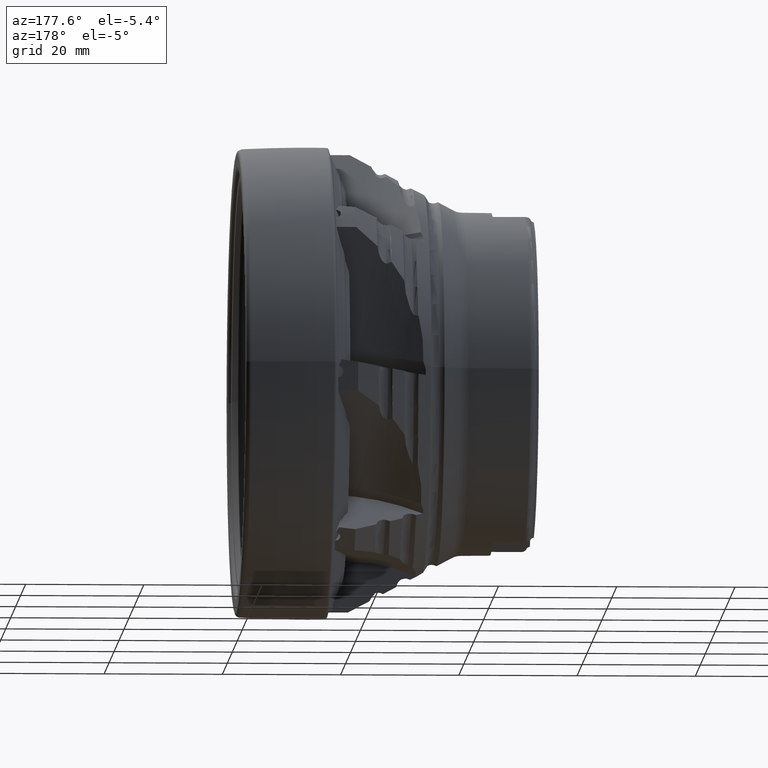
[diagram: clean part render]
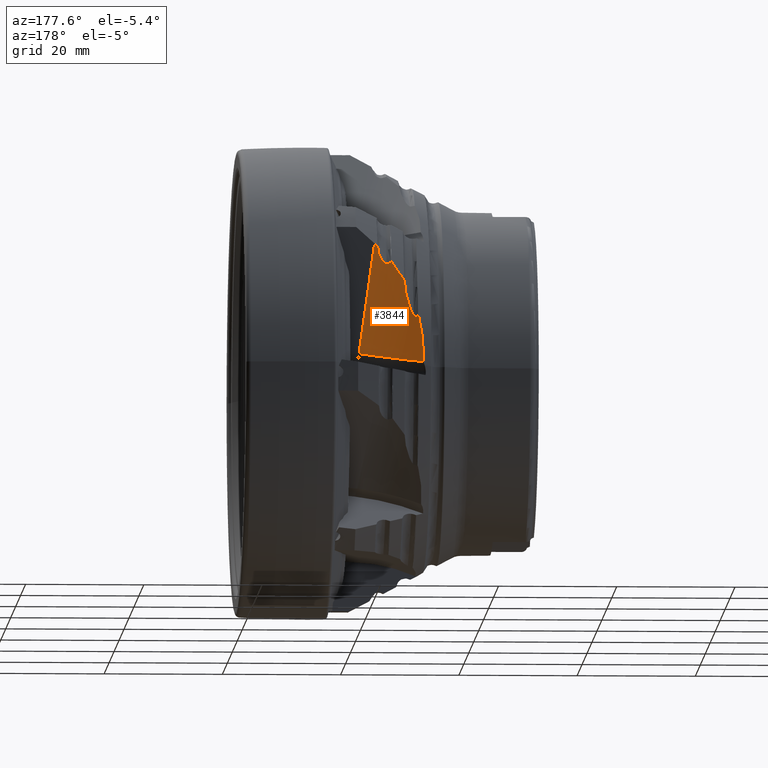
[diagram: same view with one face highlighted and labeled with its STEP entity id]
A machine part, auxiliary view. The second image highlights one B-rep face of the part: STEP entity #3844.
In plain terms, the highlighted cylindrical surface (partial cylindrical patch) has radius 28 mm, axis along (0.1392, -0, -0.9903).
Its self-contained STEP definition (entity closure, byte-faithful):
#272 = CARTESIAN_POINT ( 'NONE',  ( -28.54999999999719051, 32.02380545925430511, 8.342915129850325684 ) ) ;
#298 = CARTESIAN_POINT ( 'NONE',  ( -28.25059067918947520, 31.91470644618340913, 8.534568651594154787 ) ) ;
#367 = CARTESIAN_POINT ( 'NONE',  ( -26.09401459730156603, 31.10721405778480886, 14.66001357893649271 ) ) ;
#369 = CARTESIAN_POINT ( 'NONE',  ( -26.05623755796752050, 31.09739366526137871, 14.72731713612908422 ) ) ;
#404 = EDGE_CURVE ( 'NONE', #463, #1331, #7743, .T. ) ;
#453 = CARTESIAN_POINT ( 'NONE',  ( -24.04999999999976978, 30.70044355384183277, 17.75917441920303119 ) ) ;
#463 = VERTEX_POINT ( 'NONE', #8515 ) ;
#473 = B_SPLINE_CURVE_WITH_KNOTS ( 'NONE', 3,
 ( #11228, #16771, #16952, #9964, #4296, #1397, #1585, #298, #12685, #14053 ),
 .UNSPECIFIED., .F., .F.,
 ( 4, 2, 2, 2, 4 ),
 ( 0.005757929590043406667, 0.005978103728821175522, 0.006198277867598943509, 0.006418452006376711497, 0.006638626145154480351 ),
 .UNSPECIFIED. ) ;
#488 = VERTEX_POINT ( 'NONE', #9047 ) ;
#586 = CARTESIAN_POINT ( 'NONE',  ( -24.04999999999976978, 30.70044355384183277, 17.75917441920303119 ) ) ;
#625 = CARTESIAN_POINT ( 'NONE',  ( -27.10094642001381970, 31.51358236391267553, 9.849628833809386919 ) ) ;
#715 = CARTESIAN_POINT ( 'NONE',  ( -26.18160270408412060, 31.15158933761906468, 13.80139049490509073 ) ) ;
#793 = VERTEX_POINT ( 'NONE', #15702 ) ;
#1118 = LINE ( 'NONE', #10595, #13188 ) ;
#1173 = VERTEX_POINT ( 'NONE', #1516 ) ;
#1331 = VERTEX_POINT ( 'NONE', #3922 ) ;
#1397 = CARTESIAN_POINT ( 'NONE',  ( -28.04029982979329816, 31.84828060497942559, 8.500696362892220748 ) ) ;
#1400 = VERTEX_POINT ( 'NONE', #10681 ) ;
#1446 = CARTESIAN_POINT ( 'NONE',  ( -29.29088833288376037, 32.56091778339649778, 3.288621524088843895 ) ) ;
#1488 = CARTESIAN_POINT ( 'NONE',  ( -21.55623755796532848, 30.50421663162748587, 20.55381755742710581 ) ) ;
#1516 = CARTESIAN_POINT ( 'NONE',  ( -27.65310013455658122, 31.71508596336956032, 8.802256102059438092 ) ) ;
#1585 = CARTESIAN_POINT ( 'NONE',  ( -28.11490365212778642, 31.87249608808506096, 8.494141626032918779 ) ) ;
#1818 = CARTESIAN_POINT ( 'NONE',  ( -24.79365820758102146, 30.80518772417406126, 16.79451610091992464 ) ) ;
#1890 = CARTESIAN_POINT ( 'NONE',  ( -28.36213381450417970, 31.94714175012272506, 8.629362536280213547 ) ) ;
#1910 = EDGE_CURVE ( 'NONE', #3236, #10356, #15117, .T. ) ;
#2066 = VERTEX_POINT ( 'NONE', #8586 ) ;
#2347 = CARTESIAN_POINT ( 'NONE',  ( -22.08995577937714927, 30.52974839597614221, 18.55638395515981287 ) ) ;
#2401 = B_SPLINE_CURVE_WITH_KNOTS ( 'NONE', 3,
 ( #14879, #14793, #5224, #10881 ),
 .UNSPECIFIED., .F., .F.,
 ( 4, 4 ),
 ( 0.003409954374900377432, 0.004005814591837761861 ),
 .UNSPECIFIED. ) ;
#2409 = EDGE_CURVE ( 'NONE', #793, #1400, #1118, .T. ) ;
#2622 = VERTEX_POINT ( 'NONE', #9345 ) ;
#2657 = CARTESIAN_POINT ( 'NONE',  ( -23.88970935413226826, 30.68080866256903505, 17.82127014401150333 ) ) ;
#3236 = VERTEX_POINT ( 'NONE', #13403 ) ;
#3242 = CARTESIAN_POINT ( 'NONE',  ( -28.51697997293542386, 32.00647995554353997, 8.470346181860353596 ) ) ;
#3267 = CYLINDRICAL_SURFACE ( 'NONE', #13908, 27.99999999999991829 ) ;
#3470 = DIRECTION ( 'NONE',  ( 0.1391731009600656876, -1.035546365812845016E-14, -0.9902680687415703620 ) ) ;
#3557 = CARTESIAN_POINT ( 'NONE',  ( -18.49250115703378228, 58.50000000000001421, 2.245645206013481943 ) ) ;
#3673 = CARTESIAN_POINT ( 'NONE',  ( -23.15310013455561489, 30.61042586495209150, 17.55723081468747537 ) ) ;
#3700 = CARTESIAN_POINT ( 'NONE',  ( -26.71360237392335080, 31.36929571353183022, 10.98145226772411043 ) ) ;
#3791 = EDGE_CURVE ( 'NONE', #1173, #2066, #473, .T. ) ;
#3797 = CARTESIAN_POINT ( 'NONE',  ( -21.92164612986321615, 30.52019603093055622, 18.93336669877165690 ) ) ;
#3844 = ADVANCED_FACE ( 'NONE', ( #17400 ), #3267, .F. ) ;
#3887 = CARTESIAN_POINT ( 'NONE',  ( -23.15310013455561489, 30.61042586495209150, 17.55723081468747537 ) ) ;
#3922 = CARTESIAN_POINT ( 'NONE',  ( -29.27311110032949060, 32.70304527663430605, 0.7305292859820695650 ) ) ;
#4296 = CARTESIAN_POINT ( 'NONE',  ( -27.90976683512982603, 31.80470918555885262, 8.552490839220924457 ) ) ;
#4336 = CARTESIAN_POINT ( 'NONE',  ( -29.32246990230704853, 32.64834757631168571, 2.013039795174663471 ) ) ;
#4356 = EDGE_CURVE ( 'NONE', #2622, #3236, #9351, .T. ) ;
#4708 = CARTESIAN_POINT ( 'NONE',  ( -28.53461363328776201, 32.01549169064553269, 8.407027578726580685 ) ) ;
#4737 = DIRECTION ( 'NONE',  ( -0.9902680687415702510, 0.0000000000000000000, -0.1391731009600656599 ) ) ;
#4849 = B_SPLINE_CURVE_WITH_KNOTS ( 'NONE', 3,
 ( #1890, #11386, #12750, #8720, #8540, #14115, #12914, #3242, #4708, #272 ),
 .UNSPECIFIED., .F., .F.,
 ( 4, 2, 2, 2, 4 ),
 ( 2.874024412443958522E-07, 5.065854974774317964E-05, 0.0001010296970542419616, 0.0002017719916672356089, 0.0004032565808932190004 ),
 .UNSPECIFIED. ) ;
#4877 = CARTESIAN_POINT ( 'NONE',  ( -23.86213381451907622, 30.67810531826804521, 17.79645256951199883 ) ) ;
#4963 = ORIENTED_EDGE ( 'NONE', *, *, #4356, .F. ) ;
#5066 = CARTESIAN_POINT ( 'NONE',  ( -21.83813139593051389, 30.51609305850201537, 19.19523269962337864 ) ) ;
#5224 = CARTESIAN_POINT ( 'NONE',  ( -21.41335075078870531, 30.50142481548463991, 20.69287440126593935 ) ) ;
#5259 = CARTESIAN_POINT ( 'NONE',  ( -21.66175518919580867, 30.50708620309818997, 20.27002314049083864 ) ) ;
#5292 = CARTESIAN_POINT ( 'NONE',  ( -23.92809867452178096, 30.68495350537261146, 17.83424665490629479 ) ) ;
#5663 = CARTESIAN_POINT ( 'NONE',  ( -21.61705818974851212, 30.50554738043827641, 20.47001015371376909 ) ) ;
#5704 = CARTESIAN_POINT ( 'NONE',  ( -28.85119390431551167, 32.18655060070684470, 7.087889875937440465 ) ) ;
#5745 = CARTESIAN_POINT ( 'NONE',  ( -25.46267497448589978, 30.94309312557481562, 15.78480798212548031 ) ) ;
#5968 = CARTESIAN_POINT ( 'NONE',  ( -28.54999999999719051, 32.02380545925430511, 8.342915129850325684 ) ) ;
#6157 = ORIENTED_EDGE ( 'NONE', *, *, #9391, .F. ) ;
#6265 = CARTESIAN_POINT ( 'NONE',  ( -27.50863791426117899, 31.66365349514580529, 8.987570541006538960 ) ) ;
#6600 = CARTESIAN_POINT ( 'NONE',  ( -21.59371293881813614, 30.50494885019469748, 20.51734667333436946 ) ) ;
#7081 = CARTESIAN_POINT ( 'NONE',  ( -29.05522017628383580, 32.33006877587618533, 5.826048598774804077 ) ) ;
#7240 = B_SPLINE_CURVE_WITH_KNOTS ( 'NONE', 3,
 ( #1488, #6600, #5663, #12147, #17705, #14491 ),
 .UNSPECIFIED., .F., .F.,
 ( 4, 2, 4 ),
 ( 2.735478208363185009E-07, 0.0001541642264757534441, 0.0003080549051306705980 ),
 .UNSPECIFIED. ) ;
#7267 = VERTEX_POINT ( 'NONE', #586 ) ;
#7363 = CARTESIAN_POINT ( 'NONE',  ( -26.11626718921555934, 31.11407710317502762, 14.58706203661256140 ) ) ;
#7415 = CARTESIAN_POINT ( 'NONE',  ( -23.76534592526001788, 30.66861680081094832, 17.70934491264488386 ) ) ;
#7560 = CARTESIAN_POINT ( 'NONE',  ( -18.18918041566173116, 58.50000000000000000, 0.08740598668363597223 ) ) ;
#7633 = CARTESIAN_POINT ( 'NONE',  ( -26.23305293733247012, 31.17738006162400666, 13.32481451118996674 ) ) ;
#7703 = EDGE_CURVE ( 'NONE', #2066, #463, #4849, .T. ) ;
#7739 = DIRECTION ( 'NONE',  ( 0.1391731009600656876, -1.035546365812845016E-14, -0.9902680687415703620 ) ) ;
#7743 = B_SPLINE_CURVE_WITH_KNOTS ( 'NONE', 3,
 ( #5968, #5704, #7081, #1446, #4336, #17075 ),
 .UNSPECIFIED., .F., .F.,
 ( 4, 2, 4 ),
 ( 8.487923574132785379E-07, 0.003835890408678294984, 0.007670932024999177305 ),
 .UNSPECIFIED. ) ;
#7822 = CARTESIAN_POINT ( 'NONE',  ( -22.88855377335084285, 30.58718640388264376, 17.63533743285126931 ) ) ;
#8290 = CARTESIAN_POINT ( 'NONE',  ( -24.04999999999976978, 30.70044355384183277, 17.75917441920303119 ) ) ;
#8515 = CARTESIAN_POINT ( 'NONE',  ( -28.54999999999719051, 32.02380545925430511, 8.342915129850325684 ) ) ;
#8524 = CARTESIAN_POINT ( 'NONE',  ( -23.86213381451907622, 30.67810531826804521, 17.79645256951199883 ) ) ;
#8540 = CARTESIAN_POINT ( 'NONE',  ( -28.43350235505033297, 31.97094600236795969, 8.628220948747337360 ) ) ;
#8586 = CARTESIAN_POINT ( 'NONE',  ( -28.36213381450417970, 31.94714175012272506, 8.629362536280213547 ) ) ;
#8720 = CARTESIAN_POINT ( 'NONE',  ( -28.42129897454855580, 31.96632099906788227, 8.639863371133650105 ) ) ;
#8813 = CARTESIAN_POINT ( 'NONE',  ( -26.05623755796752050, 31.09739366526137871, 14.72731713612908422 ) ) ;
#9012 = ORIENTED_EDGE ( 'NONE', *, *, #11652, .F. ) ;
#9046 = B_SPLINE_CURVE_WITH_KNOTS ( 'NONE', 3,
 ( #8813, #367, #7363, #14307, #14039, #15400 ),
 .UNSPECIFIED., .F., .F.,
 ( 4, 2, 4 ),
 ( 4.048123989649418922E-07, 0.0002299901724372721285, 0.0004595755324755793525 ),
 .UNSPECIFIED. ) ;
#9047 = CARTESIAN_POINT ( 'NONE',  ( -21.55623755796532848, 30.50421663162748587, 20.55381755742710581 ) ) ;
#9166 = CARTESIAN_POINT ( 'NONE',  ( -22.15287788597085239, 30.53348406292107953, 18.43431342248333493 ) ) ;
#9170 = CARTESIAN_POINT ( 'NONE',  ( -26.38102417444140357, 31.24119017564516554, 12.37960581607774024 ) ) ;
#9345 = CARTESIAN_POINT ( 'NONE',  ( -21.66175518919580867, 30.50708620309818997, 20.27002314049083864 ) ) ;
#9347 = ORIENTED_EDGE ( 'NONE', *, *, #14006, .F. ) ;
#9351 = B_SPLINE_CURVE_WITH_KNOTS ( 'NONE', 3,
 ( #5259, #13643, #9558, #5066, #3797, #2347, #9166, #16374, #10827, #13459, #12267, #7822, #13378, #3887 ),
 .UNSPECIFIED., .F., .F.,
 ( 4, 2, 2, 2, 2, 2, 4 ),
 ( 3.355597485857304691E-06, 0.0008190747807143806611, 0.001634793963942904067, 0.002042653555557167721, 0.002450513147171431809, 0.002858372738785695463, 0.003266232330399959551 ),
 .UNSPECIFIED. ) ;
#9391 = EDGE_CURVE ( 'NONE', #7267, #16200, #14696, .T. ) ;
#9558 = CARTESIAN_POINT ( 'NONE',  ( -21.71649745803845377, 30.51014563792994849, 19.72525820063692947 ) ) ;
#9873 = B_SPLINE_CURVE_WITH_KNOTS ( 'NONE', 3,
 ( #17471, #715, #7633, #9170, #16018, #3700, #13287, #625, #10475, #15827, #6265, #16103 ),
 .UNSPECIFIED., .F., .F.,
 ( 4, 2, 2, 2, 2, 4 ),
 ( 4.857968298363643841E-06, 0.001443125873734623027, 0.002881393779170882651, 0.004319661684607142491, 0.005038795637325274579, 0.005757929590043406667 ),
 .UNSPECIFIED. ) ;
#9964 = CARTESIAN_POINT ( 'NONE',  ( -27.85114608547702630, 31.78458219657429851, 8.594837542360973970 ) ) ;
#10356 = VERTEX_POINT ( 'NONE', #8524 ) ;
#10475 = CARTESIAN_POINT ( 'NONE',  ( -27.19111346026897635, 31.54699828901875946, 9.628522470921740961 ) ) ;
#10595 = CARTESIAN_POINT ( 'NONE',  ( -18.49250115703378228, 30.50000000000002842, 2.245645206013774597 ) ) ;
#10681 = CARTESIAN_POINT ( 'NONE',  ( -18.49250115703378228, 30.50000000000002842, 2.245645206013774597 ) ) ;
#10827 = CARTESIAN_POINT ( 'NONE',  ( -22.37667978833928117, 30.54797818321859637, 18.08680329748033344 ) ) ;
#10860 = CARTESIAN_POINT ( 'NONE',  ( -23.99948131701430398, 30.69353662481134393, 17.81440671047983670 ) ) ;
#10881 = CARTESIAN_POINT ( 'NONE',  ( -21.55623755796532848, 30.50421663162748587, 20.55381755742710581 ) ) ;
#10974 = EDGE_CURVE ( 'NONE', #1400, #1331, #13901, .T. ) ;
#11228 = CARTESIAN_POINT ( 'NONE',  ( -27.65310013455658122, 31.71508596336956032, 8.802256102059438092 ) ) ;
#11270 = CARTESIAN_POINT ( 'NONE',  ( -26.16175518919588328, 31.13282795623791088, 14.28342977564479632 ) ) ;
#11386 = CARTESIAN_POINT ( 'NONE',  ( -28.37383458877554432, 31.95047232336877840, 8.641100643638134571 ) ) ;
#11492 = ORIENTED_EDGE ( 'NONE', *, *, #12191, .F. ) ;
#11652 = EDGE_CURVE ( 'NONE', #14755, #1173, #9873, .T. ) ;
#11676 = ORIENTED_EDGE ( 'NONE', *, *, #13542, .F. ) ;
#11871 = DIRECTION ( 'NONE',  ( -0.9902680687415702510, 0.0000000000000000000, -0.1391731009600656876 ) ) ;
#12147 = CARTESIAN_POINT ( 'NONE',  ( -21.64974257213532383, 30.50649955926581924, 20.37278442677034107 ) ) ;
#12191 = EDGE_CURVE ( 'NONE', #488, #2622, #7240, .T. ) ;
#12213 = CARTESIAN_POINT ( 'NONE',  ( -23.86213381451907622, 30.67810531826804521, 17.79645256951199883 ) ) ;
#12220 = ORIENTED_EDGE ( 'NONE', *, *, #10974, .T. ) ;
#12267 = CARTESIAN_POINT ( 'NONE',  ( -22.65820632366963139, 30.56855335385546368, 17.78776324675319742 ) ) ;
#12685 = CARTESIAN_POINT ( 'NONE',  ( -28.31062405676298965, 31.93247972712063998, 8.577688429717634122 ) ) ;
#12750 = CARTESIAN_POINT ( 'NONE',  ( -28.39026883792155331, 31.95559260035653182, 8.648260763341344415 ) ) ;
#12914 = CARTESIAN_POINT ( 'NONE',  ( -28.47875058022144046, 31.98928658352929943, 8.561067041996944127 ) ) ;
#13188 = VECTOR ( 'NONE', #16142, 999.9999999999998863 ) ;
#13287 = CARTESIAN_POINT ( 'NONE',  ( -26.85150905986039760, 31.42089133283240088, 10.52197959358198176 ) ) ;
#13378 = CARTESIAN_POINT ( 'NONE',  ( -23.01825798841865023, 30.59826884982771489, 17.57842615090718752 ) ) ;
#13403 = CARTESIAN_POINT ( 'NONE',  ( -23.15310013455561489, 30.61042586495209150, 17.55723081468747537 ) ) ;
#13459 = CARTESIAN_POINT ( 'NONE',  ( -22.55691099272749511, 30.56090396910728657, 17.88201865812325408 ) ) ;
#13489 = CARTESIAN_POINT ( 'NONE',  ( -26.05623755796752050, 31.09739366526137871, 14.72731713612908422 ) ) ;
#13542 = EDGE_CURVE ( 'NONE', #793, #488, #2401, .T. ) ;
#13643 = CARTESIAN_POINT ( 'NONE',  ( -21.67805444874848320, 30.50831005820677078, 19.99520296883676096 ) ) ;
#13901 = CIRCLE ( 'NONE', #15630, 27.99999999999999289 ) ;
#13908 = AXIS2_PLACEMENT_3D ( 'NONE', #7560, #7739, #4737 ) ;
#14006 = EDGE_CURVE ( 'NONE', #10356, #7267, #14350, .T. ) ;
#14039 = CARTESIAN_POINT ( 'NONE',  ( -26.15858305168496045, 31.12982941047688712, 14.36047190876595891 ) ) ;
#14053 = CARTESIAN_POINT ( 'NONE',  ( -28.36213381450417970, 31.94714175012272506, 8.629362536280213547 ) ) ;
#14115 = CARTESIAN_POINT ( 'NONE',  ( -28.46472586455565335, 31.98317421833305474, 8.590511975433839709 ) ) ;
#14207 = ORIENTED_EDGE ( 'NONE', *, *, #1910, .F. ) ;
#14307 = CARTESIAN_POINT ( 'NONE',  ( -26.14925088964412581, 31.12553623374812517, 14.43695994496439283 ) ) ;
#14350 = B_SPLINE_CURVE_WITH_KNOTS ( 'NONE', 3,
 ( #12213, #2657, #5292, #10860, #16408, #8290 ),
 .UNSPECIFIED., .F., .F.,
 ( 4, 2, 4 ),
 ( 2.676777113110093029E-07, 0.0001109178436016754627, 0.0002215680094920399160 ),
 .UNSPECIFIED. ) ;
#14361 = CARTESIAN_POINT ( 'NONE',  ( -23.65631055655105186, 30.65786886649683396, 17.63791199644616370 ) ) ;
#14491 = CARTESIAN_POINT ( 'NONE',  ( -21.66175518919580867, 30.50708620309818997, 20.27002314049083864 ) ) ;
#14696 = B_SPLINE_CURVE_WITH_KNOTS ( 'NONE', 3,
 ( #453, #1818, #5745, #369 ),
 .UNSPECIFIED., .F., .F.,
 ( 4, 4 ),
 ( 3.278489116138032006E-07, 0.003657473883027046076 ),
 .UNSPECIFIED. ) ;
#14755 = VERTEX_POINT ( 'NONE', #11270 ) ;
#14793 = CARTESIAN_POINT ( 'NONE',  ( -21.26908251589535581, 30.50000000000030198, 20.83021031807639645 ) ) ;
#14879 = CARTESIAN_POINT ( 'NONE',  ( -21.12345395800541326, 30.50000000000028777, 20.96584710706921584 ) ) ;
#15117 = B_SPLINE_CURVE_WITH_KNOTS ( 'NONE', 3,
 ( #3673, #17354, #17177, #14361, #7415, #4877 ),
 .UNSPECIFIED., .F., .F.,
 ( 4, 2, 4 ),
 ( 0.003266232330399959551, 0.003648991705326889642, 0.004031751080253819300 ),
 .UNSPECIFIED. ) ;
#15181 = ORIENTED_EDGE ( 'NONE', *, *, #3791, .F. ) ;
#15278 = ORIENTED_EDGE ( 'NONE', *, *, #404, .F. ) ;
#15400 = CARTESIAN_POINT ( 'NONE',  ( -26.16175518919588328, 31.13282795623791088, 14.28342977564479632 ) ) ;
#15424 = EDGE_CURVE ( 'NONE', #16200, #14755, #9046, .T. ) ;
#15630 = AXIS2_PLACEMENT_3D ( 'NONE', #3557, #3470, #11871 ) ;
#15690 = ORIENTED_EDGE ( 'NONE', *, *, #2409, .T. ) ;
#15702 = CARTESIAN_POINT ( 'NONE',  ( -21.12345395800541326, 30.50000000000028777, 20.96584710706921584 ) ) ;
#15827 = CARTESIAN_POINT ( 'NONE',  ( -27.39602218158715985, 31.62233913726082690, 9.198621243197916186 ) ) ;
#16018 = CARTESIAN_POINT ( 'NONE',  ( -26.47773301691556114, 31.27922920706174281, 11.91100405311385302 ) ) ;
#16103 = CARTESIAN_POINT ( 'NONE',  ( -27.65310013455658122, 31.71508596336956032, 8.802256102059438092 ) ) ;
#16142 = DIRECTION ( 'NONE',  ( 0.1391731009600656876, -1.378255264486798670E-14, -0.9902680687415703620 ) ) ;
#16200 = VERTEX_POINT ( 'NONE', #13489 ) ;
#16374 = CARTESIAN_POINT ( 'NONE',  ( -22.29625772081459445, 30.54259873860613084, 18.19941259370391506 ) ) ;
#16408 = CARTESIAN_POINT ( 'NONE',  ( -24.02749874486683979, 30.69727425472524374, 17.78836259021278821 ) ) ;
#16435 = EDGE_LOOP ( 'NONE', ( #17220, #15181, #9012, #17907, #6157, #9347, #14207, #4963, #11492, #11676, #15690, #12220, #15278 ) ) ;
#16771 = CARTESIAN_POINT ( 'NONE',  ( -27.69732950909695290, 31.73083282020142093, 8.745519180038112239 ) ) ;
#16952 = CARTESIAN_POINT ( 'NONE',  ( -27.74519714397494141, 31.74774287055733168, 8.691022680354752339 ) ) ;
#17075 = CARTESIAN_POINT ( 'NONE',  ( -29.27311110032949060, 32.70304527663430605, 0.7305292859820695650 ) ) ;
#17177 = CARTESIAN_POINT ( 'NONE',  ( -23.41242640700506072, 30.63435216126713101, 17.55013978815873799 ) ) ;
#17220 = ORIENTED_EDGE ( 'NONE', *, *, #7703, .F. ) ;
#17354 = CARTESIAN_POINT ( 'NONE',  ( -23.27964391734350968, 30.62183472134691797, 17.53733986738698647 ) ) ;
#17400 = FACE_OUTER_BOUND ( 'NONE', #16435, .T. ) ;
#17471 = CARTESIAN_POINT ( 'NONE',  ( -26.16175518919588328, 31.13282795623791088, 14.28342977564479632 ) ) ;
#17705 = CARTESIAN_POINT ( 'NONE',  ( -21.65869159240003228, 30.50685616819526658, 20.32167813712015203 ) ) ;
#17907 = ORIENTED_EDGE ( 'NONE', *, *, #15424, .F. ) ;